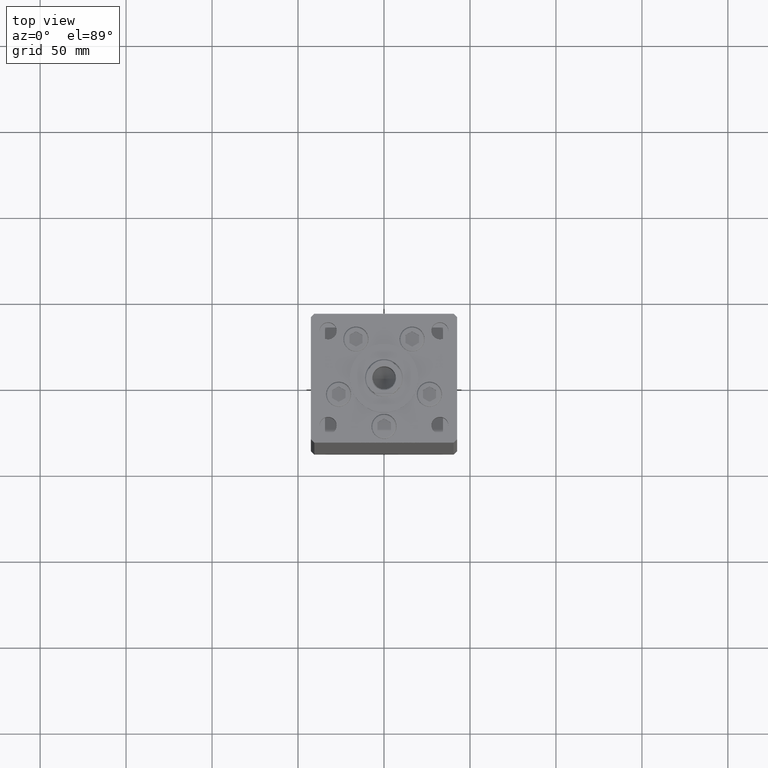
[diagram: clean part render]
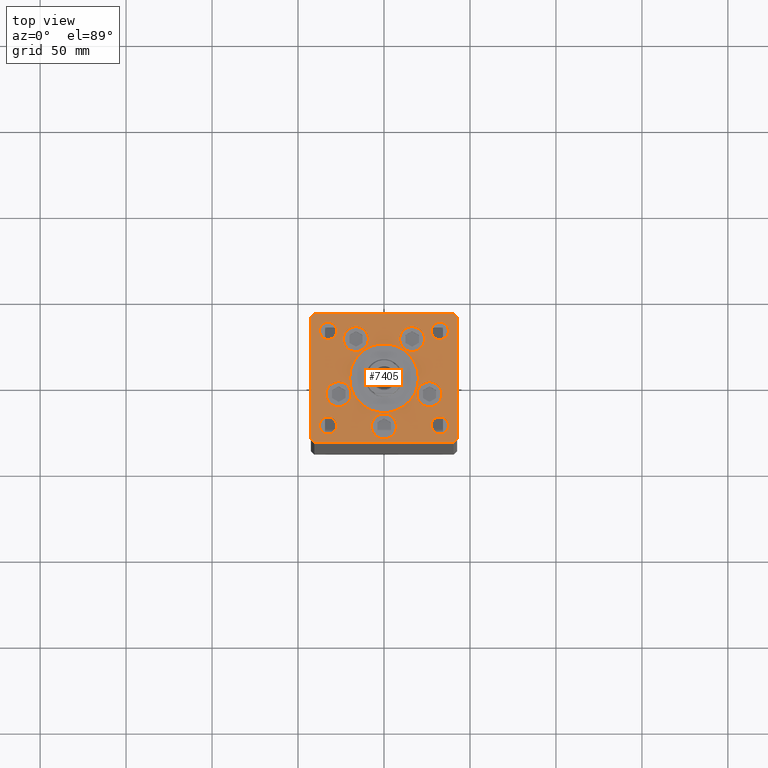
[diagram: same view with one face highlighted and labeled with its STEP entity id]
A machine part, top view. The second image highlights one B-rep face of the part: STEP entity #7405.
In plain terms, the highlighted planar face has unit normal (0, 0, 1).
Its self-contained STEP definition (entity closure, byte-faithful):
#118 = VERTEX_POINT ( 'NONE', #29195 ) ;
#215 = DIRECTION ( 'NONE',  ( -0.7071067811865524577, 0.7071067811865426878, 0.000000000000000000 ) ) ;
#492 = VERTEX_POINT ( 'NONE', #33562 ) ;
#581 = ORIENTED_EDGE ( 'NONE', *, *, #40881, .F. ) ;
#843 = DIRECTION ( 'NONE',  ( 0.000000000000000000, 0.000000000000000000, 1.000000000000000000 ) ) ;
#907 = ORIENTED_EDGE ( 'NONE', *, *, #27808, .F. ) ;
#1084 = CARTESIAN_POINT ( 'NONE',  ( 32.50000000000000000, -27.50000000000000355, 0.000000000000000000 ) ) ;
#1173 = CARTESIAN_POINT ( 'NONE',  ( -32.50000000000000000, 27.50000000000000711, 0.000000000000000000 ) ) ;
#1439 = CIRCLE ( 'NONE', #42728, 7.249999999999999112 ) ;
#1554 = VECTOR ( 'NONE', #30200, 1000.000000000000000 ) ;
#1604 = CARTESIAN_POINT ( 'NONE',  ( -20.00000000000000000, -6.938893903907228378E-15, 0.000000000000000000 ) ) ;
#1890 = DIRECTION ( 'NONE',  ( 1.000000000000000000, 0.000000000000000000, 0.000000000000000000 ) ) ;
#2434 = ORIENTED_EDGE ( 'NONE', *, *, #10784, .T. ) ;
#2666 = VECTOR ( 'NONE', #15239, 1000.000000000000000 ) ;
#2785 = CIRCLE ( 'NONE', #33978, 7.249999999999999112 ) ;
#3181 = EDGE_CURVE ( 'NONE', #44253, #6653, #9624, .T. ) ;
#3289 = CARTESIAN_POINT ( 'NONE',  ( 37.50000000000000000, 27.49999999999999645, 0.000000000000000000 ) ) ;
#3399 = DIRECTION ( 'NONE',  ( 0.000000000000000000, 0.000000000000000000, 1.000000000000000000 ) ) ;
#3717 = AXIS2_PLACEMENT_3D ( 'NONE', #30905, #46230, #10589 ) ;
#3834 = CIRCLE ( 'NONE', #27424, 7.249999999999999112 ) ;
#4091 = DIRECTION ( 'NONE',  ( 0.7071067811865487940, -0.7071067811865463515, 0.000000000000000000 ) ) ;
#4303 = EDGE_CURVE ( 'NONE', #38817, #32076, #8040, .T. ) ;
#4933 = EDGE_LOOP ( 'NONE', ( #28129, #39402, #45854, #17344, #49722, #29583, #2434, #41977 ) ) ;
#4958 = CARTESIAN_POINT ( 'NONE',  ( 26.39865316429777664, -9.333333333333330373, 0.000000000000000000 ) ) ;
#4970 = EDGE_CURVE ( 'NONE', #15251, #13401, #38924, .T. ) ;
#4991 = FACE_BOUND ( 'NONE', #39062, .T. ) ;
#5163 = EDGE_CURVE ( 'NONE', #23656, #33680, #46087, .T. ) ;
#5296 = DIRECTION ( 'NONE',  ( -0.000000000000000000, -0.000000000000000000, -1.000000000000000000 ) ) ;
#5347 = EDGE_CURVE ( 'NONE', #21472, #43046, #26709, .T. ) ;
#5429 = AXIS2_PLACEMENT_3D ( 'NONE', #36628, #32397, #25975 ) ;
#5491 = CARTESIAN_POINT ( 'NONE',  ( 19.14865316429777664, -9.333333333333328596, 0.000000000000000000 ) ) ;
#5501 = FACE_BOUND ( 'NONE', #47782, .T. ) ;
#5725 = VERTEX_POINT ( 'NONE', #39058 ) ;
#5850 = CARTESIAN_POINT ( 'NONE',  ( 0.000000000000000000, -6.938893903907228378E-15, 0.000000000000000000 ) ) ;
#5931 = DIRECTION ( 'NONE',  ( -1.000000000000000000, -4.283267841918041508E-16, 0.000000000000000000 ) ) ;
#6193 = ORIENTED_EDGE ( 'NONE', *, *, #46540, .T. ) ;
#6499 = CARTESIAN_POINT ( 'NONE',  ( -42.50000000000000711, 35.50000000000000000, 0.000000000000000000 ) ) ;
#6653 = VERTEX_POINT ( 'NONE', #24266 ) ;
#6704 = ORIENTED_EDGE ( 'NONE', *, *, #34147, .F. ) ;
#6866 = EDGE_CURVE ( 'NONE', #13401, #44253, #19735, .T. ) ;
#7063 = LINE ( 'NONE', #51384, #2666 ) ;
#7405 = ADVANCED_FACE ( 'NONE', ( #28987, #13679, #17640, #13155, #5501, #16587, #25286, #45609, #4991, #16856, #25791 ), #32955, .T. ) ;
#7550 = CARTESIAN_POINT ( 'NONE',  ( -33.64865316429777664, -9.333333333333328596, 0.000000000000000000 ) ) ;
#7871 = VERTEX_POINT ( 'NONE', #3289 ) ;
#7963 = EDGE_CURVE ( 'NONE', #18090, #49354, #33445, .T. ) ;
#8040 = LINE ( 'NONE', #24108, #25032 ) ;
#8583 = CARTESIAN_POINT ( 'NONE',  ( -26.39865316429777664, -9.333333333333330373, 0.000000000000000000 ) ) ;
#9142 = EDGE_CURVE ( 'NONE', #40132, #49060, #24141, .T. ) ;
#9329 = CARTESIAN_POINT ( 'NONE',  ( 0.000000000000000000, -28.00000000000000000, 0.000000000000000000 ) ) ;
#9482 = DIRECTION ( 'NONE',  ( 0.000000000000000000, 0.000000000000000000, 1.000000000000000000 ) ) ;
#9624 = LINE ( 'NONE', #45246, #40170 ) ;
#9946 = DIRECTION ( 'NONE',  ( 0.000000000000000000, 0.000000000000000000, 1.000000000000000000 ) ) ;
#10095 = DIRECTION ( 'NONE',  ( 0.7071067811865474617, 0.7071067811865474617, 0.000000000000000000 ) ) ;
#10201 = EDGE_CURVE ( 'NONE', #43046, #21472, #10748, .T. ) ;
#10435 = CARTESIAN_POINT ( 'NONE',  ( -37.50000000000000711, 27.50000000000000711, 0.000000000000000000 ) ) ;
#10589 = DIRECTION ( 'NONE',  ( 1.000000000000000000, 0.000000000000000000, 0.000000000000000000 ) ) ;
#10632 = AXIS2_PLACEMENT_3D ( 'NONE', #25017, #48781, #49045 ) ;
#10708 = AXIS2_PLACEMENT_3D ( 'NONE', #42555, #51257, #26454 ) ;
#10748 = CIRCLE ( 'NONE', #40242, 7.250000000000000000 ) ;
#10784 = EDGE_CURVE ( 'NONE', #6653, #47375, #11062, .T. ) ;
#10911 = EDGE_LOOP ( 'NONE', ( #19523, #19382 ) ) ;
#10932 = AXIS2_PLACEMENT_3D ( 'NONE', #27156, #14771, #51437 ) ;
#10965 = CIRCLE ( 'NONE', #26115, 4.999999999999997335 ) ;
#11062 = LINE ( 'NONE', #21334, #46163 ) ;
#11542 = AXIS2_PLACEMENT_3D ( 'NONE', #8583, #44716, #49197 ) ;
#11968 = CARTESIAN_POINT ( 'NONE',  ( 27.50000000000000355, -27.50000000000000355, 0.000000000000000000 ) ) ;
#11978 = DIRECTION ( 'NONE',  ( 0.000000000000000000, 0.000000000000000000, 1.000000000000000000 ) ) ;
#12167 = AXIS2_PLACEMENT_3D ( 'NONE', #51638, #52163, #51383 ) ;
#12237 = DIRECTION ( 'NONE',  ( 0.000000000000000000, 0.000000000000000000, 1.000000000000000000 ) ) ;
#12655 = ORIENTED_EDGE ( 'NONE', *, *, #31816, .F. ) ;
#13155 = FACE_BOUND ( 'NONE', #39154, .T. ) ;
#13401 = VERTEX_POINT ( 'NONE', #29384 ) ;
#13679 = FACE_BOUND ( 'NONE', #34856, .T. ) ;
#13684 = ORIENTED_EDGE ( 'NONE', *, *, #33281, .F. ) ;
#13690 = DIRECTION ( 'NONE',  ( 1.000000000000000000, 0.000000000000000000, 0.000000000000000000 ) ) ;
#13792 = LINE ( 'NONE', #34105, #33412 ) ;
#13994 = DIRECTION ( 'NONE',  ( 1.000000000000000000, 0.000000000000000000, 0.000000000000000000 ) ) ;
#14233 = VERTEX_POINT ( 'NONE', #25946 ) ;
#14771 = DIRECTION ( 'NONE',  ( 0.000000000000000000, 0.000000000000000000, 1.000000000000000000 ) ) ;
#14876 = LINE ( 'NONE', #30975, #1554 ) ;
#15239 = DIRECTION ( 'NONE',  ( 9.773090005503134168E-17, -1.000000000000000000, 0.000000000000000000 ) ) ;
#15251 = VERTEX_POINT ( 'NONE', #35781 ) ;
#15574 = AXIS2_PLACEMENT_3D ( 'NONE', #36970, #843, #13994 ) ;
#16021 = CIRCLE ( 'NONE', #36259, 7.249999999999999112 ) ;
#16033 = CARTESIAN_POINT ( 'NONE',  ( 42.50000000000001421, 35.50000000000002132, 0.000000000000000000 ) ) ;
#16229 = EDGE_CURVE ( 'NONE', #42435, #49735, #37917, .T. ) ;
#16542 = CARTESIAN_POINT ( 'NONE',  ( 7.250000000000000000, -28.00000000000000000, 0.000000000000000000 ) ) ;
#16587 = FACE_BOUND ( 'NONE', #10911, .T. ) ;
#16671 = VERTEX_POINT ( 'NONE', #49433 ) ;
#16730 = DIRECTION ( 'NONE',  ( 1.000000000000000000, 0.000000000000000000, 0.000000000000000000 ) ) ;
#16828 = AXIS2_PLACEMENT_3D ( 'NONE', #40602, #19508, #19763 ) ;
#16856 = FACE_OUTER_BOUND ( 'NONE', #4933, .T. ) ;
#16926 = ORIENTED_EDGE ( 'NONE', *, *, #32962, .T. ) ;
#17161 = DIRECTION ( 'NONE',  ( -1.000000000000000000, 0.000000000000000000, 0.000000000000000000 ) ) ;
#17170 = EDGE_CURVE ( 'NONE', #33680, #23656, #42095, .T. ) ;
#17344 = ORIENTED_EDGE ( 'NONE', *, *, #4970, .T. ) ;
#17419 = EDGE_CURVE ( 'NONE', #118, #50483, #16021, .T. ) ;
#17640 = FACE_BOUND ( 'NONE', #30211, .T. ) ;
#18090 = VERTEX_POINT ( 'NONE', #20591 ) ;
#18099 = EDGE_CURVE ( 'NONE', #16671, #38816, #10965, .T. ) ;
#18443 = CARTESIAN_POINT ( 'NONE',  ( 16.32291334290544071, 22.74999999999999289, 0.000000000000000000 ) ) ;
#18876 = DIRECTION ( 'NONE',  ( 9.773090005503145261E-17, 1.000000000000000000, 0.000000000000000000 ) ) ;
#19382 = ORIENTED_EDGE ( 'NONE', *, *, #17170, .F. ) ;
#19508 = DIRECTION ( 'NONE',  ( 0.000000000000000000, 0.000000000000000000, 1.000000000000000000 ) ) ;
#19523 = ORIENTED_EDGE ( 'NONE', *, *, #5163, .F. ) ;
#19735 = LINE ( 'NONE', #16033, #25815 ) ;
#19763 = DIRECTION ( 'NONE',  ( 1.000000000000000000, 0.000000000000000000, 0.000000000000000000 ) ) ;
#20267 = CARTESIAN_POINT ( 'NONE',  ( -27.50000000000000000, -27.50000000000000355, 0.000000000000000000 ) ) ;
#20591 = CARTESIAN_POINT ( 'NONE',  ( 33.64865316429777664, -9.333333333333330373, 0.000000000000000000 ) ) ;
#20634 = CIRCLE ( 'NONE', #15574, 4.999999999999997335 ) ;
#20849 = CARTESIAN_POINT ( 'NONE',  ( 40.50000000000001421, -37.49999999999992184, 0.000000000000000000 ) ) ;
#21334 = CARTESIAN_POINT ( 'NONE',  ( -40.50000000000000000, 37.49999999999997158, 0.000000000000000000 ) ) ;
#21411 = ORIENTED_EDGE ( 'NONE', *, *, #7963, .F. ) ;
#21467 = AXIS2_PLACEMENT_3D ( 'NONE', #43490, #3399, #46226 ) ;
#21472 = VERTEX_POINT ( 'NONE', #39302 ) ;
#21564 = ORIENTED_EDGE ( 'NONE', *, *, #16229, .F. ) ;
#21610 = EDGE_LOOP ( 'NONE', ( #42793, #13684 ) ) ;
#21849 = EDGE_CURVE ( 'NONE', #47375, #38817, #7063, .T. ) ;
#22694 = VERTEX_POINT ( 'NONE', #41864 ) ;
#22940 = ORIENTED_EDGE ( 'NONE', *, *, #17419, .F. ) ;
#23267 = ORIENTED_EDGE ( 'NONE', *, *, #28879, .T. ) ;
#23656 = VERTEX_POINT ( 'NONE', #35639 ) ;
#23783 = ORIENTED_EDGE ( 'NONE', *, *, #35816, .F. ) ;
#24108 = CARTESIAN_POINT ( 'NONE',  ( -42.50000000000000000, -35.50000000000004263, 0.000000000000000000 ) ) ;
#24141 = CIRCLE ( 'NONE', #31767, 20.00000000000000000 ) ;
#24266 = CARTESIAN_POINT ( 'NONE',  ( -40.50000000000000000, 37.49999999999997158, 0.000000000000000000 ) ) ;
#24479 = CARTESIAN_POINT ( 'NONE',  ( 16.32291334290544071, 22.74999999999999289, 0.000000000000000000 ) ) ;
#25017 = CARTESIAN_POINT ( 'NONE',  ( 0.000000000000000000, 0.000000000000000000, 0.000000000000000000 ) ) ;
#25028 = CARTESIAN_POINT ( 'NONE',  ( -16.32291334290544071, 22.74999999999999289, 0.000000000000000000 ) ) ;
#25032 = VECTOR ( 'NONE', #4091, 1000.000000000000000 ) ;
#25221 = CARTESIAN_POINT ( 'NONE',  ( 32.50000000000000000, -27.50000000000000355, 0.000000000000000000 ) ) ;
#25286 = FACE_BOUND ( 'NONE', #25707, .T. ) ;
#25409 = DIRECTION ( 'NONE',  ( 0.000000000000000000, 0.000000000000000000, 1.000000000000000000 ) ) ;
#25426 = DIRECTION ( 'NONE',  ( -0.000000000000000000, -0.000000000000000000, -1.000000000000000000 ) ) ;
#25707 = EDGE_LOOP ( 'NONE', ( #6193, #23267 ) ) ;
#25791 = FACE_BOUND ( 'NONE', #41149, .T. ) ;
#25815 = VECTOR ( 'NONE', #215, 1000.000000000000000 ) ;
#25890 = AXIS2_PLACEMENT_3D ( 'NONE', #1173, #25426, #38084 ) ;
#25946 = CARTESIAN_POINT ( 'NONE',  ( 23.57291334290544071, 22.74999999999999289, 0.000000000000000000 ) ) ;
#25975 = DIRECTION ( 'NONE',  ( 1.000000000000000000, 0.000000000000000000, 0.000000000000000000 ) ) ;
#26030 = VERTEX_POINT ( 'NONE', #10435 ) ;
#26115 = AXIS2_PLACEMENT_3D ( 'NONE', #1084, #5296, #17161 ) ;
#26454 = DIRECTION ( 'NONE',  ( 1.000000000000000000, 0.000000000000000000, 0.000000000000000000 ) ) ;
#26709 = CIRCLE ( 'NONE', #10708, 7.250000000000000000 ) ;
#27156 = CARTESIAN_POINT ( 'NONE',  ( -26.39865316429777664, -9.333333333333330373, 0.000000000000000000 ) ) ;
#27289 = CARTESIAN_POINT ( 'NONE',  ( 42.50000000000000711, -35.49999999999992895, 0.000000000000000000 ) ) ;
#27424 = AXIS2_PLACEMENT_3D ( 'NONE', #48127, #11978, #28058 ) ;
#27808 = EDGE_CURVE ( 'NONE', #49354, #18090, #2785, .T. ) ;
#27820 = ORIENTED_EDGE ( 'NONE', *, *, #18099, .T. ) ;
#27995 = ORIENTED_EDGE ( 'NONE', *, *, #10201, .F. ) ;
#28057 = EDGE_LOOP ( 'NONE', ( #6704, #43099 ) ) ;
#28058 = DIRECTION ( 'NONE',  ( 1.000000000000000000, 0.000000000000000000, 0.000000000000000000 ) ) ;
#28129 = ORIENTED_EDGE ( 'NONE', *, *, #4303, .T. ) ;
#28162 = VERTEX_POINT ( 'NONE', #20849 ) ;
#28411 = CIRCLE ( 'NONE', #25890, 5.000000000000004441 ) ;
#28879 = EDGE_CURVE ( 'NONE', #26030, #5725, #47569, .T. ) ;
#28987 = FACE_BOUND ( 'NONE', #28057, .T. ) ;
#29195 = CARTESIAN_POINT ( 'NONE',  ( -9.072913342905442491, 22.74999999999999289, 0.000000000000000000 ) ) ;
#29384 = CARTESIAN_POINT ( 'NONE',  ( 42.50000000000001421, 35.50000000000002132, 0.000000000000000000 ) ) ;
#29440 = DIRECTION ( 'NONE',  ( -1.000000000000000000, 0.000000000000000000, 0.000000000000000000 ) ) ;
#29583 = ORIENTED_EDGE ( 'NONE', *, *, #3181, .T. ) ;
#29754 = CARTESIAN_POINT ( 'NONE',  ( -23.57291334290544071, 22.74999999999999289, 0.000000000000000000 ) ) ;
#30200 = DIRECTION ( 'NONE',  ( 1.000000000000000000, 1.370645709413773283E-15, 0.000000000000000000 ) ) ;
#30211 = EDGE_LOOP ( 'NONE', ( #581, #48449 ) ) ;
#30869 = ORIENTED_EDGE ( 'NONE', *, *, #5347, .F. ) ;
#30905 = CARTESIAN_POINT ( 'NONE',  ( 32.50000000000000000, 27.49999999999999645, 0.000000000000000000 ) ) ;
#30975 = CARTESIAN_POINT ( 'NONE',  ( -40.50000000000000711, -37.50000000000003553, 0.000000000000000000 ) ) ;
#31538 = CIRCLE ( 'NONE', #33259, 4.999999999999997335 ) ;
#31765 = AXIS2_PLACEMENT_3D ( 'NONE', #18443, #42443, #46652 ) ;
#31767 = AXIS2_PLACEMENT_3D ( 'NONE', #5850, #38026, #1890 ) ;
#31816 = EDGE_CURVE ( 'NONE', #49735, #42435, #37435, .T. ) ;
#32076 = VERTEX_POINT ( 'NONE', #41501 ) ;
#32214 = EDGE_CURVE ( 'NONE', #7871, #492, #50903, .T. ) ;
#32397 = DIRECTION ( 'NONE',  ( 0.000000000000000000, 0.000000000000000000, 1.000000000000000000 ) ) ;
#32955 = PLANE ( 'NONE',  #10632 ) ;
#32962 = EDGE_CURVE ( 'NONE', #38816, #16671, #31538, .T. ) ;
#33259 = AXIS2_PLACEMENT_3D ( 'NONE', #25221, #41319, #29440 ) ;
#33281 = EDGE_CURVE ( 'NONE', #492, #7871, #20634, .T. ) ;
#33412 = VECTOR ( 'NONE', #10095, 1000.000000000000114 ) ;
#33445 = CIRCLE ( 'NONE', #40166, 7.249999999999999112 ) ;
#33562 = CARTESIAN_POINT ( 'NONE',  ( 27.50000000000000355, 27.49999999999999645, 0.000000000000000000 ) ) ;
#33680 = VERTEX_POINT ( 'NONE', #7550 ) ;
#33978 = AXIS2_PLACEMENT_3D ( 'NONE', #4958, #9946, #37134 ) ;
#34105 = CARTESIAN_POINT ( 'NONE',  ( 40.50000000000001421, -37.49999999999992184, 0.000000000000000000 ) ) ;
#34147 = EDGE_CURVE ( 'NONE', #49060, #40132, #36645, .T. ) ;
#34856 = EDGE_LOOP ( 'NONE', ( #22940, #23783 ) ) ;
#35639 = CARTESIAN_POINT ( 'NONE',  ( -19.14865316429777664, -9.333333333333330373, 0.000000000000000000 ) ) ;
#35781 = CARTESIAN_POINT ( 'NONE',  ( 42.50000000000000711, -35.49999999999992895, 0.000000000000000000 ) ) ;
#35816 = EDGE_CURVE ( 'NONE', #50483, #118, #3834, .T. ) ;
#36259 = AXIS2_PLACEMENT_3D ( 'NONE', #25028, #9482, #13690 ) ;
#36628 = CARTESIAN_POINT ( 'NONE',  ( -32.50000000000000000, -27.50000000000000355, 0.000000000000000000 ) ) ;
#36645 = CIRCLE ( 'NONE', #21467, 20.00000000000000000 ) ;
#36764 = CARTESIAN_POINT ( 'NONE',  ( -42.50000000000000000, -35.50000000000004263, 0.000000000000000000 ) ) ;
#36805 = CARTESIAN_POINT ( 'NONE',  ( 40.50000000000000711, 37.50000000000000711, 0.000000000000000000 ) ) ;
#36892 = CARTESIAN_POINT ( 'NONE',  ( 20.00000000000000000, -4.489600305612522259E-15, 0.000000000000000000 ) ) ;
#36901 = DIRECTION ( 'NONE',  ( 0.000000000000000000, 0.000000000000000000, 1.000000000000000000 ) ) ;
#36970 = CARTESIAN_POINT ( 'NONE',  ( 32.50000000000000000, 27.49999999999999645, 0.000000000000000000 ) ) ;
#37134 = DIRECTION ( 'NONE',  ( 1.000000000000000000, 0.000000000000000000, 0.000000000000000000 ) ) ;
#37435 = CIRCLE ( 'NONE', #5429, 5.000000000000000888 ) ;
#37917 = CIRCLE ( 'NONE', #16828, 5.000000000000000888 ) ;
#38026 = DIRECTION ( 'NONE',  ( 0.000000000000000000, 0.000000000000000000, 1.000000000000000000 ) ) ;
#38084 = DIRECTION ( 'NONE',  ( -1.000000000000000000, 0.000000000000000000, 0.000000000000000000 ) ) ;
#38816 = VERTEX_POINT ( 'NONE', #11968 ) ;
#38817 = VERTEX_POINT ( 'NONE', #36764 ) ;
#38899 = EDGE_CURVE ( 'NONE', #28162, #15251, #13792, .T. ) ;
#38924 = LINE ( 'NONE', #27289, #43555 ) ;
#39058 = CARTESIAN_POINT ( 'NONE',  ( -27.50000000000000000, 27.50000000000000711, 0.000000000000000000 ) ) ;
#39062 = EDGE_LOOP ( 'NONE', ( #12655, #21564 ) ) ;
#39154 = EDGE_LOOP ( 'NONE', ( #21411, #907 ) ) ;
#39302 = CARTESIAN_POINT ( 'NONE',  ( -7.250000000000000000, -28.00000000000000000, 0.000000000000000000 ) ) ;
#39402 = ORIENTED_EDGE ( 'NONE', *, *, #44786, .T. ) ;
#40132 = VERTEX_POINT ( 'NONE', #36892 ) ;
#40166 = AXIS2_PLACEMENT_3D ( 'NONE', #49434, #12237, #16730 ) ;
#40170 = VECTOR ( 'NONE', #5931, 1000.000000000000000 ) ;
#40242 = AXIS2_PLACEMENT_3D ( 'NONE', #9329, #25409, #41507 ) ;
#40602 = CARTESIAN_POINT ( 'NONE',  ( -32.50000000000000000, -27.50000000000000355, 0.000000000000000000 ) ) ;
#40881 = EDGE_CURVE ( 'NONE', #14233, #22694, #1439, .T. ) ;
#41149 = EDGE_LOOP ( 'NONE', ( #27820, #16926 ) ) ;
#41319 = DIRECTION ( 'NONE',  ( -0.000000000000000000, -0.000000000000000000, -1.000000000000000000 ) ) ;
#41501 = CARTESIAN_POINT ( 'NONE',  ( -40.50000000000000711, -37.50000000000003553, 0.000000000000000000 ) ) ;
#41507 = DIRECTION ( 'NONE',  ( 1.000000000000000000, 0.000000000000000000, 0.000000000000000000 ) ) ;
#41864 = CARTESIAN_POINT ( 'NONE',  ( 9.072913342905442491, 22.74999999999999289, 0.000000000000000000 ) ) ;
#41977 = ORIENTED_EDGE ( 'NONE', *, *, #21849, .T. ) ;
#42095 = CIRCLE ( 'NONE', #10932, 7.249999999999999112 ) ;
#42435 = VERTEX_POINT ( 'NONE', #45686 ) ;
#42443 = DIRECTION ( 'NONE',  ( 0.000000000000000000, 0.000000000000000000, 1.000000000000000000 ) ) ;
#42555 = CARTESIAN_POINT ( 'NONE',  ( 0.000000000000000000, -28.00000000000000000, 0.000000000000000000 ) ) ;
#42724 = CIRCLE ( 'NONE', #31765, 7.249999999999999112 ) ;
#42728 = AXIS2_PLACEMENT_3D ( 'NONE', #24479, #36901, #49039 ) ;
#42793 = ORIENTED_EDGE ( 'NONE', *, *, #32214, .F. ) ;
#43046 = VERTEX_POINT ( 'NONE', #16542 ) ;
#43099 = ORIENTED_EDGE ( 'NONE', *, *, #9142, .F. ) ;
#43490 = CARTESIAN_POINT ( 'NONE',  ( 0.000000000000000000, -6.938893903907228378E-15, 0.000000000000000000 ) ) ;
#43555 = VECTOR ( 'NONE', #18876, 1000.000000000000000 ) ;
#44253 = VERTEX_POINT ( 'NONE', #36805 ) ;
#44716 = DIRECTION ( 'NONE',  ( 0.000000000000000000, 0.000000000000000000, 1.000000000000000000 ) ) ;
#44786 = EDGE_CURVE ( 'NONE', #32076, #28162, #14876, .T. ) ;
#45246 = CARTESIAN_POINT ( 'NONE',  ( 40.50000000000000711, 37.50000000000000711, 0.000000000000000000 ) ) ;
#45609 = FACE_BOUND ( 'NONE', #21610, .T. ) ;
#45686 = CARTESIAN_POINT ( 'NONE',  ( -37.50000000000000711, -27.50000000000000355, 0.000000000000000000 ) ) ;
#45854 = ORIENTED_EDGE ( 'NONE', *, *, #38899, .T. ) ;
#46087 = CIRCLE ( 'NONE', #11542, 7.249999999999999112 ) ;
#46163 = VECTOR ( 'NONE', #48509, 1000.000000000000000 ) ;
#46226 = DIRECTION ( 'NONE',  ( 1.000000000000000000, 0.000000000000000000, 0.000000000000000000 ) ) ;
#46230 = DIRECTION ( 'NONE',  ( 0.000000000000000000, 0.000000000000000000, 1.000000000000000000 ) ) ;
#46540 = EDGE_CURVE ( 'NONE', #5725, #26030, #28411, .T. ) ;
#46652 = DIRECTION ( 'NONE',  ( 1.000000000000000000, 0.000000000000000000, 0.000000000000000000 ) ) ;
#46960 = EDGE_CURVE ( 'NONE', #22694, #14233, #42724, .T. ) ;
#47375 = VERTEX_POINT ( 'NONE', #6499 ) ;
#47569 = CIRCLE ( 'NONE', #12167, 5.000000000000004441 ) ;
#47782 = EDGE_LOOP ( 'NONE', ( #27995, #30869 ) ) ;
#48127 = CARTESIAN_POINT ( 'NONE',  ( -16.32291334290544071, 22.74999999999999289, 0.000000000000000000 ) ) ;
#48449 = ORIENTED_EDGE ( 'NONE', *, *, #46960, .F. ) ;
#48509 = DIRECTION ( 'NONE',  ( -0.7071067811865536790, -0.7071067811865414665, 0.000000000000000000 ) ) ;
#48781 = DIRECTION ( 'NONE',  ( -0.000000000000000000, 0.000000000000000000, 1.000000000000000000 ) ) ;
#49039 = DIRECTION ( 'NONE',  ( 1.000000000000000000, 0.000000000000000000, 0.000000000000000000 ) ) ;
#49045 = DIRECTION ( 'NONE',  ( 1.000000000000000000, 0.000000000000000000, 0.000000000000000000 ) ) ;
#49060 = VERTEX_POINT ( 'NONE', #1604 ) ;
#49197 = DIRECTION ( 'NONE',  ( 1.000000000000000000, 0.000000000000000000, 0.000000000000000000 ) ) ;
#49354 = VERTEX_POINT ( 'NONE', #5491 ) ;
#49433 = CARTESIAN_POINT ( 'NONE',  ( 37.50000000000000000, -27.50000000000000355, 0.000000000000000000 ) ) ;
#49434 = CARTESIAN_POINT ( 'NONE',  ( 26.39865316429777664, -9.333333333333330373, 0.000000000000000000 ) ) ;
#49722 = ORIENTED_EDGE ( 'NONE', *, *, #6866, .T. ) ;
#49735 = VERTEX_POINT ( 'NONE', #20267 ) ;
#50483 = VERTEX_POINT ( 'NONE', #29754 ) ;
#50903 = CIRCLE ( 'NONE', #3717, 4.999999999999997335 ) ;
#51257 = DIRECTION ( 'NONE',  ( 0.000000000000000000, 0.000000000000000000, 1.000000000000000000 ) ) ;
#51383 = DIRECTION ( 'NONE',  ( -1.000000000000000000, 0.000000000000000000, 0.000000000000000000 ) ) ;
#51384 = CARTESIAN_POINT ( 'NONE',  ( -42.50000000000000711, 35.50000000000000000, 0.000000000000000000 ) ) ;
#51437 = DIRECTION ( 'NONE',  ( 1.000000000000000000, 0.000000000000000000, 0.000000000000000000 ) ) ;
#51638 = CARTESIAN_POINT ( 'NONE',  ( -32.50000000000000000, 27.50000000000000711, 0.000000000000000000 ) ) ;
#52163 = DIRECTION ( 'NONE',  ( -0.000000000000000000, -0.000000000000000000, -1.000000000000000000 ) ) ;